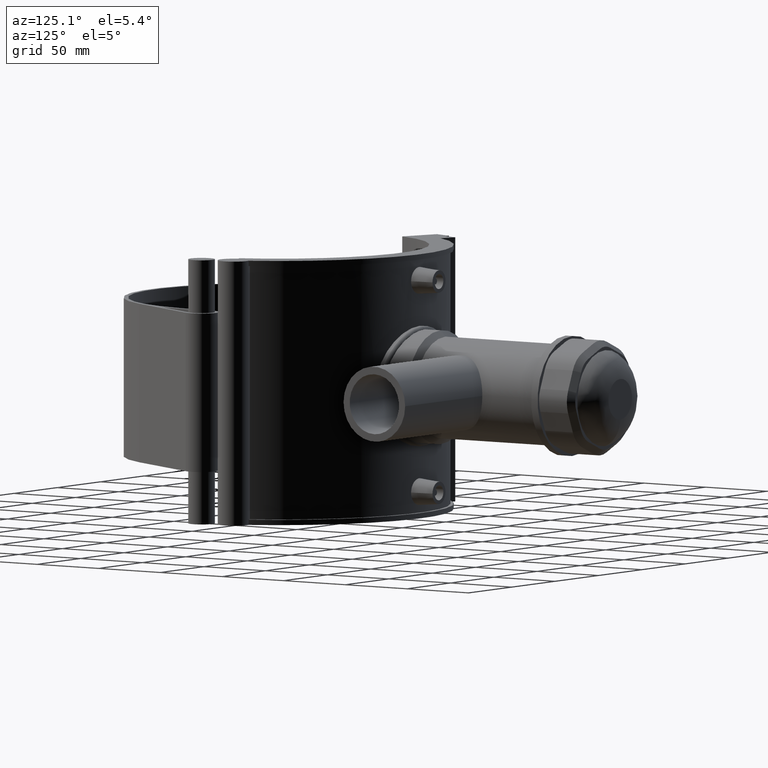
[diagram: clean part render]
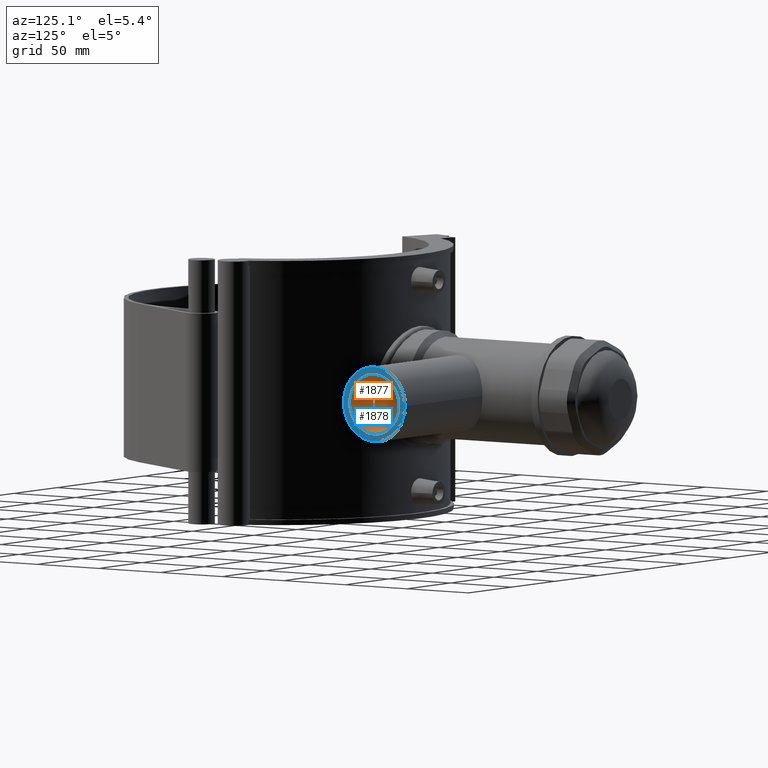
[diagram: same view with the hole feature highlighted: cylindrical wall and planar end face, labeled with their STEP entity ids]
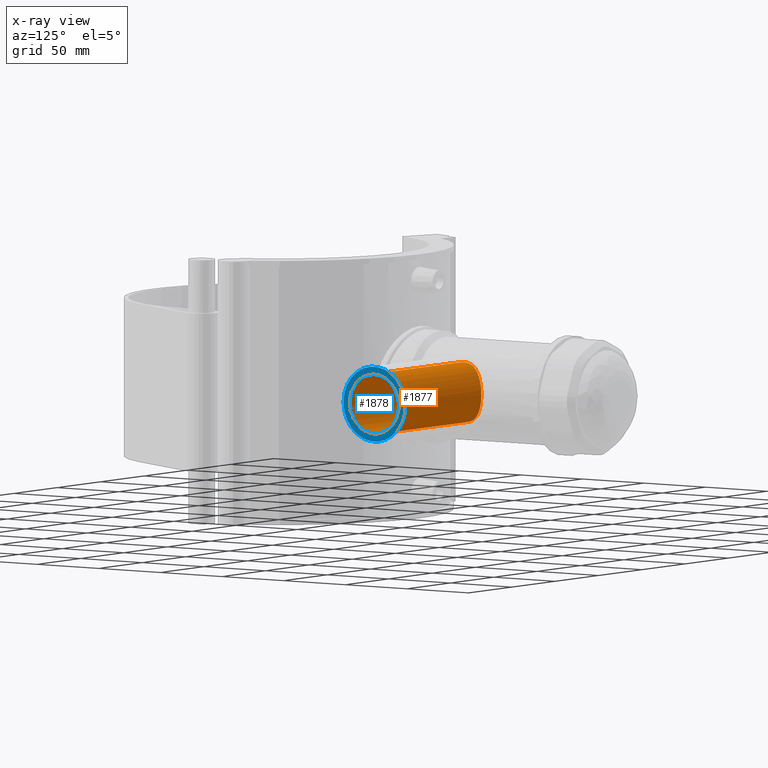
[diagram: x-ray of the same camera — body ghosted, the hole faces saturated]
A machine part, auxiliary view. The highlighted faces form one hole feature of diameter 40 mm: the cylindrical wall (entity #1877, orange) and its adjacent planar end face (entity #1878, blue) — they share a circular edge in the B-rep.
The next image is the same camera in x-ray (body ghosted, the hole faces saturated) — the bore reads through the body.
Wall:
#365=FACE_BOUND('',#582,.T.);
#401=B_SPLINE_CURVE_WITH_KNOTS('',3,(#2868,#2869,#2870,#2871,#2872,#2873,
#2874,#2875,#2876,#2877,#2878,#2879,#2880,#2881,#2882,#2883,#2884,#2885,
#2886,#2887,#2888,#2889,#2890,#2891,#2892,#2893,#2894,#2895,#2896,#2897,
#2898,#2899,#2900,#2901,#2902,#2903,#2904,#2905,#2906,#2907,#2908,#2909,
#2910,#2911,#2912,#2913,#2914,#2915,#2916,#2917,#2918,#2919,#2920,#2921,
#2922,#2923,#2924,#2925,#2926,#2927,#2928,#2929,#2930,#2931,#2932,#2933),
 .UNSPECIFIED.,.T.,.F.,(4,2,2,2,2,2,2,2,2,2,2,2,2,2,2,2,2,2,2,2,2,2,2,2,
2,2,2,2,2,2,2,2,4),(0.,0.398863975038715,0.79772795007743,1.19659192511614,
1.59545590015486,1.98795938802093,2.380462875887,2.77296636375307,3.16546985161914,
3.55797333948521,3.95047682735128,4.34298031521735,4.73548380308342,5.13434777812214,
5.53321175316085,5.93207572819957,6.33093970323828,6.729803678277,7.12866765331571,
7.52753162835442,7.92639560339314,8.31889909125921,8.71140257912528,9.10390606699135,
9.49640955485742,9.88891304272349,10.2814165305896,10.6739200184556,11.0664235063217,
11.4652874813604,11.8641514563991,12.2630154314378,12.6618794064766),
 .UNSPECIFIED.);
#417=CYLINDRICAL_SURFACE('',#2003,20.);
#456=FACE_OUTER_BOUND('',#581,.T.);
#581=EDGE_LOOP('',(#1274));
#582=EDGE_LOOP('',(#1275));
#736=CIRCLE('',#2004,20.);
#820=VERTEX_POINT('',#2867);
#826=VERTEX_POINT('',#3079);
#998=EDGE_CURVE('',#820,#820,#401,.T.);
#1004=EDGE_CURVE('',#826,#826,#736,.T.);
#1274=ORIENTED_EDGE('',*,*,#998,.T.);
#1275=ORIENTED_EDGE('',*,*,#1004,.T.);
#1877=ADVANCED_FACE('',(#456,#365),#417,.F.);
#2003=AXIS2_PLACEMENT_3D('',#3078,#2224,#2225);
#2004=AXIS2_PLACEMENT_3D('',#3080,#2226,#2227);
#2224=DIRECTION('center_axis',(1.,0.,0.));
#2225=DIRECTION('ref_axis',(0.,1.,0.));
#2226=DIRECTION('center_axis',(1.,0.,0.));
#2227=DIRECTION('ref_axis',(0.,0.,-1.));
#2867=CARTESIAN_POINT('',(19.5959179422653,164.,-20.));
#2868=CARTESIAN_POINT('Ctrl Pts',(19.5959179422653,164.,-20.));
#2869=CARTESIAN_POINT('Ctrl Pts',(19.5959179422653,162.670453416538,-20.));
#2870=CARTESIAN_POINT('Ctrl Pts',(19.735439996504,161.328031913423,-19.8658431222697));
#2871=CARTESIAN_POINT('Ctrl Pts',(20.2579679322267,158.704993895965,-19.3327196351341));
#2872=CARTESIAN_POINT('Ctrl Pts',(20.6389762604017,157.423912341301,-18.9340852569224));
#2873=CARTESIAN_POINT('Ctrl Pts',(21.537960456728,154.991031006943,-17.9048345041566));
#2874=CARTESIAN_POINT('Ctrl Pts',(22.055320350781,153.83669337106,-17.2733064634143));
#2875=CARTESIAN_POINT('Ctrl Pts',(23.115475168447,151.704438272766,-15.8265308799937));
#2876=CARTESIAN_POINT('Ctrl Pts',(23.6577271052555,150.726558598963,-15.0108298464245));
#2877=CARTESIAN_POINT('Ctrl Pts',(24.6663501456088,149.003022792084,-13.2872940395462));
#2878=CARTESIAN_POINT('Ctrl Pts',(25.1722945539708,148.190134636439,-12.3171162735882));
#2879=CARTESIAN_POINT('Ctrl Pts',(26.108024938773,146.739165835461,-10.1846354964876));
#2880=CARTESIAN_POINT('Ctrl Pts',(26.5373443917171,146.101013826024,-9.02217636138523));
#2881=CARTESIAN_POINT('Ctrl Pts',(27.2483456365335,145.062856466648,-6.56947358930779));
#2882=CARTESIAN_POINT('Ctrl Pts',(27.530409769294,144.661986531339,-5.27653167746904));
#2883=CARTESIAN_POINT('Ctrl Pts',(27.9063416668432,144.130445196808,-2.64600517684252));
#2884=CARTESIAN_POINT('Ctrl Pts',(28.,144.,-1.30834495955357));
#2885=CARTESIAN_POINT('Ctrl Pts',(28.,144.,1.30834495955357));
#2886=CARTESIAN_POINT('Ctrl Pts',(27.9063416668432,144.130445196808,2.64600517684251));
#2887=CARTESIAN_POINT('Ctrl Pts',(27.530409769294,144.661986531339,5.27653167746904));
#2888=CARTESIAN_POINT('Ctrl Pts',(27.2483456365335,145.062856466648,6.56947358930779));
#2889=CARTESIAN_POINT('Ctrl Pts',(26.5373443917171,146.101013826024,9.02217636138523));
#2890=CARTESIAN_POINT('Ctrl Pts',(26.1080249387731,146.739165835461,10.1846354964875));
#2891=CARTESIAN_POINT('Ctrl Pts',(25.1722945539708,148.190134636439,12.3171162735881));
#2892=CARTESIAN_POINT('Ctrl Pts',(24.6663501456088,149.003022792084,13.2872940395462));
#2893=CARTESIAN_POINT('Ctrl Pts',(23.6577271052556,150.726558598963,15.0108298464245));
#2894=CARTESIAN_POINT('Ctrl Pts',(23.1154751684471,151.704438272766,15.8265308799938));
#2895=CARTESIAN_POINT('Ctrl Pts',(22.0553203507811,153.83669337106,17.2733064634143));
#2896=CARTESIAN_POINT('Ctrl Pts',(21.5379604567281,154.991031006943,17.9048345041566));
#2897=CARTESIAN_POINT('Ctrl Pts',(20.6389762604017,157.423912341301,18.9340852569224));
#2898=CARTESIAN_POINT('Ctrl Pts',(20.2579679322268,158.704993895965,19.3327196351341));
#2899=CARTESIAN_POINT('Ctrl Pts',(19.7354399965041,161.328031913423,19.8658431222697));
#2900=CARTESIAN_POINT('Ctrl Pts',(19.5959179422654,162.670453416538,20.));
#2901=CARTESIAN_POINT('Ctrl Pts',(19.5959179422654,165.329546583462,20.));
#2902=CARTESIAN_POINT('Ctrl Pts',(19.7354399965041,166.671968086577,19.8658431222697));
#2903=CARTESIAN_POINT('Ctrl Pts',(20.2579679322268,169.295006104034,19.3327196351342));
#2904=CARTESIAN_POINT('Ctrl Pts',(20.6389762604017,170.576087658699,18.9340852569224));
#2905=CARTESIAN_POINT('Ctrl Pts',(21.5379604567281,173.008968993057,17.9048345041566));
#2906=CARTESIAN_POINT('Ctrl Pts',(22.0553203507811,174.16330662894,17.2733064634143));
#2907=CARTESIAN_POINT('Ctrl Pts',(23.1154751684471,176.295561727234,15.8265308799937));
#2908=CARTESIAN_POINT('Ctrl Pts',(23.6577271052556,177.273441401037,15.0108298464245));
#2909=CARTESIAN_POINT('Ctrl Pts',(24.6663501456088,178.996977207916,13.2872940395462));
#2910=CARTESIAN_POINT('Ctrl Pts',(25.1722945539708,179.809865363561,12.3171162735882));
#2911=CARTESIAN_POINT('Ctrl Pts',(26.1080249387731,181.260834164539,10.1846354964876));
#2912=CARTESIAN_POINT('Ctrl Pts',(26.5373443917171,181.898986173976,9.02217636138523));
#2913=CARTESIAN_POINT('Ctrl Pts',(27.2483456365335,182.937143533352,6.56947358930779));
#2914=CARTESIAN_POINT('Ctrl Pts',(27.530409769294,183.338013468662,5.27653167746905));
#2915=CARTESIAN_POINT('Ctrl Pts',(27.9063416668432,183.869554803192,2.64600517684252));
#2916=CARTESIAN_POINT('Ctrl Pts',(28.,184.,1.30834495955357));
#2917=CARTESIAN_POINT('Ctrl Pts',(28.,184.,-1.30834495955356));
#2918=CARTESIAN_POINT('Ctrl Pts',(27.9063416668432,183.869554803192,-2.64600517684251));
#2919=CARTESIAN_POINT('Ctrl Pts',(27.530409769294,183.338013468662,-5.27653167746904));
#2920=CARTESIAN_POINT('Ctrl Pts',(27.2483456365335,182.937143533352,-6.5694735893078));
#2921=CARTESIAN_POINT('Ctrl Pts',(26.5373443917171,181.898986173976,-9.02217636138523));
#2922=CARTESIAN_POINT('Ctrl Pts',(26.108024938773,181.260834164539,-10.1846354964876));
#2923=CARTESIAN_POINT('Ctrl Pts',(25.1722945539708,179.809865363561,-12.3171162735882));
#2924=CARTESIAN_POINT('Ctrl Pts',(24.6663501456088,178.996977207916,-13.2872940395462));
#2925=CARTESIAN_POINT('Ctrl Pts',(23.6577271052555,177.273441401037,-15.0108298464245));
#2926=CARTESIAN_POINT('Ctrl Pts',(23.115475168447,176.295561727234,-15.8265308799937));
#2927=CARTESIAN_POINT('Ctrl Pts',(22.055320350781,174.16330662894,-17.2733064634143));
#2928=CARTESIAN_POINT('Ctrl Pts',(21.537960456728,173.008968993057,-17.9048345041566));
#2929=CARTESIAN_POINT('Ctrl Pts',(20.6389762604017,170.576087658699,-18.9340852569224));
#2930=CARTESIAN_POINT('Ctrl Pts',(20.2579679322267,169.295006104035,-19.3327196351341));
#2931=CARTESIAN_POINT('Ctrl Pts',(19.735439996504,166.671968086577,-19.8658431222697));
#2932=CARTESIAN_POINT('Ctrl Pts',(19.5959179422653,165.329546583462,-20.));
#2933=CARTESIAN_POINT('Ctrl Pts',(19.5959179422653,164.,-20.));
#3078=CARTESIAN_POINT('Origin',(61.5,164.,0.));
#3079=CARTESIAN_POINT('',(123.,164.,-20.));
#3080=CARTESIAN_POINT('Origin',(123.,164.,0.));
End face:
#366=FACE_BOUND('',#584,.T.);
#457=FACE_OUTER_BOUND('',#583,.T.);
#583=EDGE_LOOP('',(#1276));
#584=EDGE_LOOP('',(#1277));
#735=CIRCLE('',#2002,25.);
#736=CIRCLE('',#2004,20.);
#824=VERTEX_POINT('',#3009);
#826=VERTEX_POINT('',#3079);
#1002=EDGE_CURVE('',#824,#824,#735,.T.);
#1004=EDGE_CURVE('',#826,#826,#736,.T.);
#1276=ORIENTED_EDGE('',*,*,#1002,.T.);
#1277=ORIENTED_EDGE('',*,*,#1004,.F.);
#1806=PLANE('',#2005);
#1878=ADVANCED_FACE('',(#457,#366),#1806,.T.);
#2002=AXIS2_PLACEMENT_3D('',#3010,#2222,#2223);
#2004=AXIS2_PLACEMENT_3D('',#3080,#2226,#2227);
#2005=AXIS2_PLACEMENT_3D('',#3081,#2228,#2229);
#2222=DIRECTION('center_axis',(1.,0.,0.));
#2223=DIRECTION('ref_axis',(0.,0.,-1.));
#2226=DIRECTION('center_axis',(1.,0.,0.));
#2227=DIRECTION('ref_axis',(0.,0.,-1.));
#2228=DIRECTION('center_axis',(1.,0.,0.));
#2229=DIRECTION('ref_axis',(0.,0.,-1.));
#3009=CARTESIAN_POINT('',(123.,189.,0.));
#3010=CARTESIAN_POINT('Origin',(123.,164.,0.));
#3079=CARTESIAN_POINT('',(123.,164.,-20.));
#3080=CARTESIAN_POINT('Origin',(123.,164.,0.));
#3081=CARTESIAN_POINT('Origin',(123.,184.,0.));